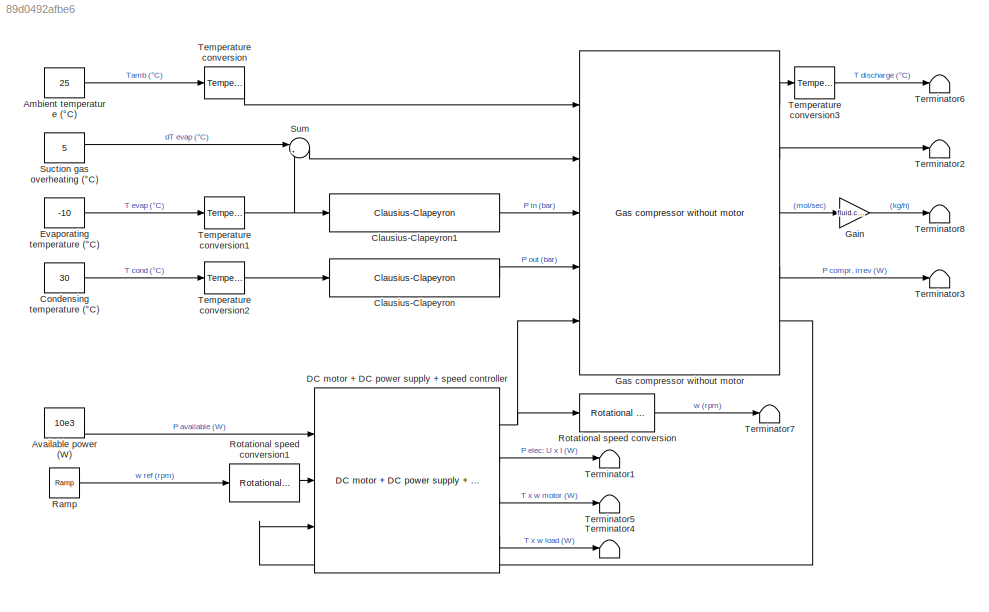
MODEL slx_89d0492afbe6
KIND model
CONFIG AbsTol = auto
CONFIG EnableMultiTasking = off
CONFIG FixedStep = auto
CONFIG MaxStep = 1e-1
CONFIG MinStep = auto
CONFIG RelTol = 1e-5
CONFIG SampleTimeConstraint = Unconstrained
CONFIG Solver = ode23tb
CONFIG SolverName = ode23tb
CONFIG StartTime = 0.0
CONFIG StopTime = tEndSim
BLOCK [Constant] Ambient temperature (°C)
  Value = 25
BLOCK [Constant] Available power (W)
  Value = 10e3
BLOCK [Reference] Clausius-Clapeyron  REF=thermochemical/Thermodynamic fluid properties/Clausius-Clapeyron  (lib defined in slx_f9e0643dc704)
  Ports = [1, 1]
  SourceBlock = thermochemical/Thermodynamic fluid properties/Clausius-Clapeyron
  SourceProductName = @ Thermochemical
  SourceType = clausius_clapeyron
BLOCK [Reference] Clausius-Clapeyron1  REF=thermochemical/Thermodynamic fluid properties/Clausius-Clapeyron  (lib defined in slx_f9e0643dc704)
  Ports = [1, 1]
  SourceBlock = thermochemical/Thermodynamic fluid properties/Clausius-Clapeyron
  SourceProductName = @ Thermochemical
  SourceType = clausius_clapeyron
BLOCK [Constant] Condensing temperature (°C)
  Value = 30
BLOCK [Reference] DC motor + DC power supply + speed controller  REF=thermochemical/Motors/DC motor + DC power supply +   (lib defined in slx_f9e0643dc704)
speed controller
  Ports = [3, 4]
  SourceBlock = thermochemical/Motors/DC motor + DC power supply + \nspeed controller
  SourceProductName = @ Thermochemical
  SourceType = dc_motor_plus_speed_controller_plus_DC_power_source
BLOCK [Constant] Evaporating temperature (°C)
  Value = -10
BLOCK [Gain] Gain
  Gain = fluid.constants.Molar_mass * 3600
  OutDataTypeStr = Inherit: Inherit via internal rule
  ParamDataTypeStr = Inherit: Inherit via internal rule
  SaturateOnIntegerOverflow = off
BLOCK [Reference] Gas compressor without motor  REF=thermochemical/Compression/Gas compressor without motor  (lib defined in slx_f9e0643dc704)
  Ports = [5, 5]
  SourceBlock = thermochemical/Compression/Gas compressor without motor
  SourceProductName = @ Thermochemical
BLOCK [Reference] Ramp  REF=simulink/Sources/Ramp
  Ports = [0, 1]
  SourceBlock = simulink/Sources/Ramp
  SourceProductBaseCode = SL
  SourceProductName = Simulink
  SourceType = Ramp
BLOCK [Reference] Rotational speed conversion  REF=thermochemical/Conversions/Rotational speed  (lib defined in slx_f9e0643dc704)
conversion
  Ports = [1, 1]
  SourceBlock = thermochemical/Conversions/Rotational speed\nconversion
  SourceProductName = @ Thermochemical
  SourceType = convert_pressure
BLOCK [Reference] Rotational speed conversion1  REF=thermochemical/Conversions/Rotational speed  (lib defined in slx_f9e0643dc704)
conversion
  Ports = [1, 1]
  SourceBlock = thermochemical/Conversions/Rotational speed\nconversion
  SourceProductName = @ Thermochemical
  SourceType = convert_pressure
BLOCK [Constant] Suction gas overheating (°C)
  Value = 5
BLOCK [Sum] Sum
  IconShape = round
  InputSameDT = off
  Inputs = |++
  OutDataTypeStr = Inherit: Inherit via internal rule
  Ports = [2, 1]
  SaturateOnIntegerOverflow = off
BLOCK [Reference] Temperature conversion  REF=thermochemical/Conversions/Temperature  (lib defined in slx_f9e0643dc704)
conversion
  Ports = [1, 1]
  SourceBlock = thermochemical/Conversions/Temperature\nconversion
  SourceProductName = @ Thermochemical
  SourceType = convert_temperature
BLOCK [Reference] Temperature conversion1  REF=thermochemical/Conversions/Temperature  (lib defined in slx_f9e0643dc704)
conversion
  Ports = [1, 1]
  SourceBlock = thermochemical/Conversions/Temperature\nconversion
  SourceProductName = @ Thermochemical
  SourceType = convert_temperature
BLOCK [Reference] Temperature conversion2  REF=thermochemical/Conversions/Temperature  (lib defined in slx_f9e0643dc704)
conversion
  Ports = [1, 1]
  SourceBlock = thermochemical/Conversions/Temperature\nconversion
  SourceProductName = @ Thermochemical
  SourceType = convert_temperature
BLOCK [Reference] Temperature conversion3  REF=thermochemical/Conversions/Temperature  (lib defined in slx_f9e0643dc704)
conversion
  Ports = [1, 1]
  SourceBlock = thermochemical/Conversions/Temperature\nconversion
  SourceProductName = @ Thermochemical
  SourceType = convert_temperature
BLOCK [Terminator] Terminator1
BLOCK [Terminator] Terminator2
BLOCK [Terminator] Terminator3
BLOCK [Terminator] Terminator4
BLOCK [Terminator] Terminator5
BLOCK [Terminator] Terminator6
BLOCK [Terminator] Terminator7
BLOCK [Terminator] Terminator8
LINE Ambient temperature (°C):1 -> Temperature conversion:1
LINE Available power (W):1 -> DC motor + DC power supply + speed controller:1
LINE Clausius-Clapeyron1:1 -> Gas compressor without motor:3
LINE Clausius-Clapeyron:1 -> Gas compressor without motor:4
LINE Condensing temperature (°C):1 -> Temperature conversion2:1
NET DC motor + DC power supply + speed controller:1 -> Gas compressor without motor:5, Rotational speed conversion:1
LINE DC motor + DC power supply + speed controller:2 -> Terminator1:1
LINE DC motor + DC power supply + speed controller:3 -> Terminator5:1
LINE DC motor + DC power supply + speed controller:4 -> Terminator4:1
LINE Evaporating temperature (°C):1 -> Temperature conversion1:1
LINE Gain:1 -> Terminator8:1
LINE Gas compressor without motor:1 -> Temperature conversion3:1
LINE Gas compressor without motor:2 -> Terminator2:1
LINE Gas compressor without motor:3 -> Gain:1
LINE Gas compressor without motor:4 -> Terminator3:1
LINE Gas compressor without motor:5 -> DC motor + DC power supply + speed controller:3
LINE Ramp:1 -> Rotational speed conversion1:1
LINE Rotational speed conversion1:1 -> DC motor + DC power supply + speed controller:2
LINE Rotational speed conversion:1 -> Terminator7:1
LINE Suction gas overheating (°C):1 -> Sum:1
LINE Sum:1 -> Gas compressor without motor:2
NET Temperature conversion1:1 -> Clausius-Clapeyron1:1, Sum:2
LINE Temperature conversion2:1 -> Clausius-Clapeyron:1
LINE Temperature conversion3:1 -> Terminator6:1
LINE Temperature conversion:1 -> Gas compressor without motor:1
note: NET lines group one-source signal fan-out (src -> all destinations, sorted); 1:1 wires keep LINE
